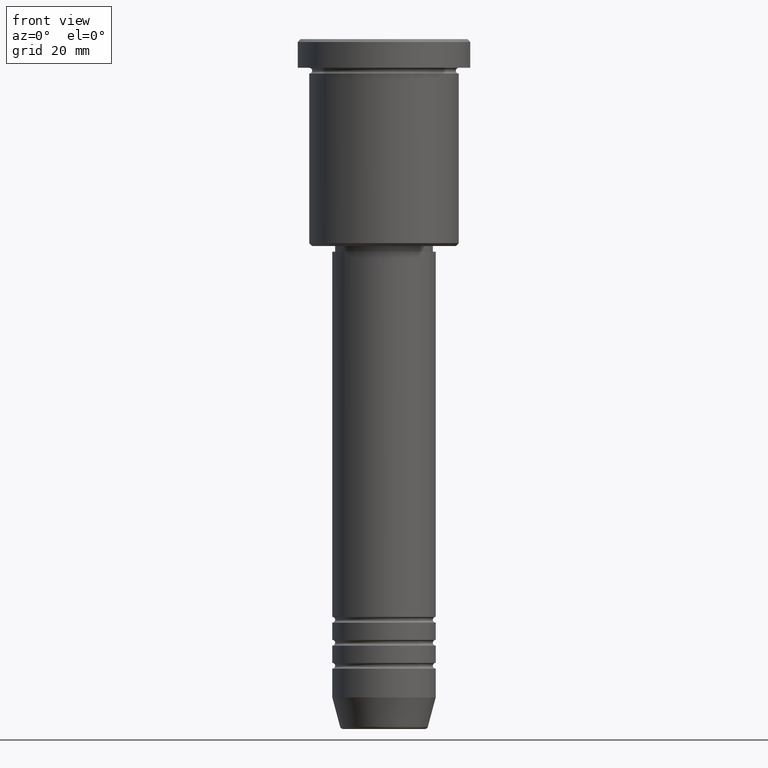
[diagram: clean part render]
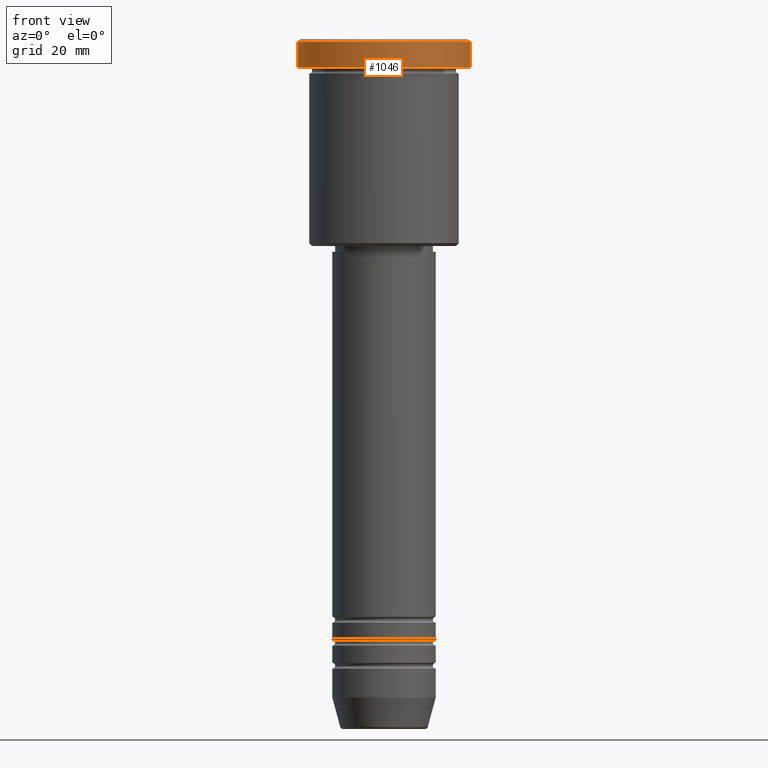
[diagram: same view with one face highlighted and labeled with its STEP entity id]
A machine part, front view. The second image highlights one B-rep face of the part: STEP entity #1046.
In plain terms, the highlighted cylindrical surface (partial cylindrical patch) has radius 15 mm, axis along (-0, -0, 1).
Its self-contained STEP definition (entity closure, byte-faithful):
#6 = CARTESIAN_POINT ( 'NONE',  ( 0.000000000000000000, 0.000000000000000000, 0.000000000000000000 ) ) ;
#71 = EDGE_CURVE ( 'NONE', #1088, #85, #1160, .T. ) ;
#85 = VERTEX_POINT ( 'NONE', #658 ) ;
#101 = ORIENTED_EDGE ( 'NONE', *, *, #742, .T. ) ;
#169 = CARTESIAN_POINT ( 'NONE',  ( 15.00000000000000000, 0.000000000000000000, 0.000000000000000000 ) ) ;
#178 = DIRECTION ( 'NONE',  ( 1.000000000000000000, 0.000000000000000000, 0.000000000000000000 ) ) ;
#184 = DIRECTION ( 'NONE',  ( -0.000000000000000000, -0.000000000000000000, 1.000000000000000000 ) ) ;
#194 = DIRECTION ( 'NONE',  ( -0.000000000000000000, -0.000000000000000000, 1.000000000000000000 ) ) ;
#198 = ORIENTED_EDGE ( 'NONE', *, *, #1175, .T. ) ;
#200 = VECTOR ( 'NONE', #526, 1000.000000000000000 ) ;
#242 = CIRCLE ( 'NONE', #1155, 15.00000000000000000 ) ;
#291 = DIRECTION ( 'NONE',  ( -0.000000000000000000, -0.000000000000000000, 1.000000000000000000 ) ) ;
#294 = VECTOR ( 'NONE', #291, 1000.000000000000000 ) ;
#348 = EDGE_LOOP ( 'NONE', ( #980, #198, #1157, #101 ) ) ;
#389 = CARTESIAN_POINT ( 'NONE',  ( -15.00000000000000000, 1.836970198721029589E-15, -0.4999999999999970024 ) ) ;
#446 = DIRECTION ( 'NONE',  ( 0.000000000000000000, 0.000000000000000000, -1.000000000000000000 ) ) ;
#526 = DIRECTION ( 'NONE',  ( -0.000000000000000000, -0.000000000000000000, 1.000000000000000000 ) ) ;
#545 = DIRECTION ( 'NONE',  ( 1.000000000000000000, 0.000000000000000000, 0.000000000000000000 ) ) ;
#555 = FACE_OUTER_BOUND ( 'NONE', #348, .T. ) ;
#627 = CARTESIAN_POINT ( 'NONE',  ( 0.000000000000000000, 0.000000000000000000, -4.999999999999999112 ) ) ;
#658 = CARTESIAN_POINT ( 'NONE',  ( 15.00000000000000000, 0.000000000000000000, -0.4999999999999970024 ) ) ;
#660 = DIRECTION ( 'NONE',  ( 1.000000000000000000, 0.000000000000000000, 0.000000000000000000 ) ) ;
#742 = EDGE_CURVE ( 'NONE', #85, #753, #242, .T. ) ;
#753 = VERTEX_POINT ( 'NONE', #389 ) ;
#759 = LINE ( 'NONE', #1099, #294 ) ;
#760 = VERTEX_POINT ( 'NONE', #931 ) ;
#858 = CIRCLE ( 'NONE', #1096, 15.00000000000000000 ) ;
#875 = AXIS2_PLACEMENT_3D ( 'NONE', #6, #194, #660 ) ;
#931 = CARTESIAN_POINT ( 'NONE',  ( -15.00000000000000000, 1.836970198721029589E-15, -4.999999999999999112 ) ) ;
#980 = ORIENTED_EDGE ( 'NONE', *, *, #1063, .F. ) ;
#1010 = CARTESIAN_POINT ( 'NONE',  ( 15.00000000000000000, 0.000000000000000000, -4.999999999999999112 ) ) ;
#1046 = ADVANCED_FACE ( 'NONE', ( #555 ), #1183, .T. ) ;
#1063 = EDGE_CURVE ( 'NONE', #760, #753, #759, .T. ) ;
#1088 = VERTEX_POINT ( 'NONE', #1010 ) ;
#1096 = AXIS2_PLACEMENT_3D ( 'NONE', #627, #184, #545 ) ;
#1099 = CARTESIAN_POINT ( 'NONE',  ( -15.00000000000000000, 1.836970198721029589E-15, 0.000000000000000000 ) ) ;
#1155 = AXIS2_PLACEMENT_3D ( 'NONE', #1180, #446, #178 ) ;
#1157 = ORIENTED_EDGE ( 'NONE', *, *, #71, .T. ) ;
#1160 = LINE ( 'NONE', #169, #200 ) ;
#1175 = EDGE_CURVE ( 'NONE', #760, #1088, #858, .T. ) ;
#1180 = CARTESIAN_POINT ( 'NONE',  ( 0.000000000000000000, 0.000000000000000000, -0.4999999999999970024 ) ) ;
#1183 = CYLINDRICAL_SURFACE ( 'NONE', #875, 15.00000000000000000 ) ;